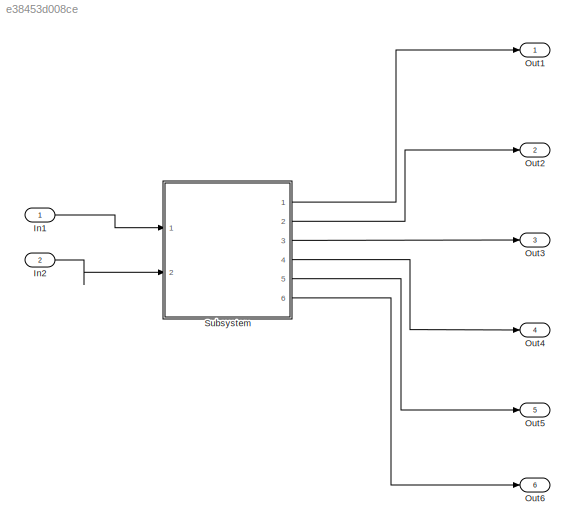
MODEL slx_e38453d008ce
KIND model
CONFIG AbsTol = auto
CONFIG EnableMultiTasking = off
CONFIG FixedStep = auto
CONFIG MaxStep = auto
CONFIG MinStep = auto
CONFIG RelTol = 1e-3
CONFIG SampleTimeConstraint = Unconstrained
CONFIG SolverName = FixedStepDiscrete
CONFIG StartTime = 0.0
CONFIG StopTime = 10.0
BLOCK [Inport] In1
BLOCK [Inport] In2
  Port = 2
BLOCK [Outport] Out1
  SignalName = AND_Out
BLOCK [Outport] Out2
  Port = 2
  SignalName = OR_Out
BLOCK [Outport] Out3
  Port = 3
  SignalName = XOR_Out
BLOCK [Outport] Out4
  Port = 4
  SignalName = XNOR_Out
BLOCK [Outport] Out5
  Port = 5
  SignalName = Num1_NOT
BLOCK [Outport] Out6
  Port = 6
  SignalName = Num2_NOT
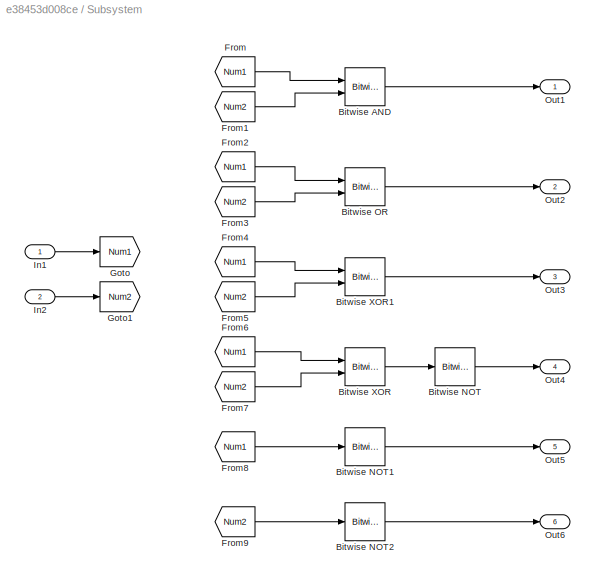
BLOCK [SubSystem] Subsystem
  Ports = [2, 6]
  RequestExecContextInheritance = off
  TreatAsAtomicUnit = on
BLOCK [Reference] Subsystem/Bitwise AND  REF=simulink/Logic and Bit
Operations/Bitwise
Operator
  Ports = [2, 1]
  SourceBlock = simulink/Logic and Bit\nOperations/Bitwise\nOperator
  SourceProductBaseCode = SL
  SourceType = Bitwise Operator
BLOCK [Reference] Subsystem/Bitwise NOT  REF=simulink/Logic and Bit
Operations/Bitwise
Operator
  Ports = [1, 1]
  SourceBlock = simulink/Logic and Bit\nOperations/Bitwise\nOperator
  SourceProductBaseCode = SL
  SourceType = Bitwise Operator
BLOCK [Reference] Subsystem/Bitwise NOT1  REF=simulink/Logic and Bit
Operations/Bitwise
Operator
  Ports = [1, 1]
  SourceBlock = simulink/Logic and Bit\nOperations/Bitwise\nOperator
  SourceProductBaseCode = SL
  SourceType = Bitwise Operator
BLOCK [Reference] Subsystem/Bitwise NOT2  REF=simulink/Logic and Bit
Operations/Bitwise
Operator
  Ports = [1, 1]
  SourceBlock = simulink/Logic and Bit\nOperations/Bitwise\nOperator
  SourceProductBaseCode = SL
  SourceType = Bitwise Operator
BLOCK [Reference] Subsystem/Bitwise OR  REF=simulink/Logic and Bit
Operations/Bitwise
Operator
  Ports = [2, 1]
  SourceBlock = simulink/Logic and Bit\nOperations/Bitwise\nOperator
  SourceProductBaseCode = SL
  SourceType = Bitwise Operator
BLOCK [Reference] Subsystem/Bitwise XOR  REF=simulink/Logic and Bit
Operations/Bitwise
Operator
  Ports = [2, 1]
  SourceBlock = simulink/Logic and Bit\nOperations/Bitwise\nOperator
  SourceProductBaseCode = SL
  SourceType = Bitwise Operator
BLOCK [Reference] Subsystem/Bitwise XOR1  REF=simulink/Logic and Bit
Operations/Bitwise
Operator
  Ports = [2, 1]
  SourceBlock = simulink/Logic and Bit\nOperations/Bitwise\nOperator
  SourceProductBaseCode = SL
  SourceType = Bitwise Operator
BLOCK [From] Subsystem/From
  GotoTag = Num1
BLOCK [From] Subsystem/From1
  GotoTag = Num2
BLOCK [From] Subsystem/From2
  GotoTag = Num1
BLOCK [From] Subsystem/From3
  GotoTag = Num2
BLOCK [From] Subsystem/From4
  GotoTag = Num1
BLOCK [From] Subsystem/From5
  GotoTag = Num2
BLOCK [From] Subsystem/From6
  GotoTag = Num1
BLOCK [From] Subsystem/From7
  GotoTag = Num2
BLOCK [From] Subsystem/From8
  GotoTag = Num1
BLOCK [From] Subsystem/From9
  GotoTag = Num2
BLOCK [Goto] Subsystem/Goto
  GotoTag = Num1
BLOCK [Goto] Subsystem/Goto1
  GotoTag = Num2
BLOCK [Inport] Subsystem/In1
  OutDataTypeStr = uint8
BLOCK [Inport] Subsystem/In2
  OutDataTypeStr = uint8
  Port = 2
BLOCK [Outport] Subsystem/Out1
BLOCK [Outport] Subsystem/Out2
  Port = 2
BLOCK [Outport] Subsystem/Out3
  Port = 3
BLOCK [Outport] Subsystem/Out4
  Port = 4
BLOCK [Outport] Subsystem/Out5
  Port = 5
BLOCK [Outport] Subsystem/Out6
  Port = 6
LINE In1:1 -> Subsystem:1
LINE In2:1 -> Subsystem:2
LINE Subsystem/Bitwise AND:1 -> Subsystem/Out1:1
LINE Subsystem/Bitwise NOT1:1 -> Subsystem/Out5:1
LINE Subsystem/Bitwise NOT2:1 -> Subsystem/Out6:1
LINE Subsystem/Bitwise NOT:1 -> Subsystem/Out4:1
LINE Subsystem/Bitwise OR:1 -> Subsystem/Out2:1
LINE Subsystem/Bitwise XOR1:1 -> Subsystem/Out3:1
LINE Subsystem/Bitwise XOR:1 -> Subsystem/Bitwise NOT:1
LINE Subsystem/From1:1 -> Subsystem/Bitwise AND:2
LINE Subsystem/From2:1 -> Subsystem/Bitwise OR:1
LINE Subsystem/From3:1 -> Subsystem/Bitwise OR:2
LINE Subsystem/From4:1 -> Subsystem/Bitwise XOR1:1
LINE Subsystem/From5:1 -> Subsystem/Bitwise XOR1:2
LINE Subsystem/From6:1 -> Subsystem/Bitwise XOR:1
LINE Subsystem/From7:1 -> Subsystem/Bitwise XOR:2
LINE Subsystem/From8:1 -> Subsystem/Bitwise NOT1:1
LINE Subsystem/From9:1 -> Subsystem/Bitwise NOT2:1
LINE Subsystem/From:1 -> Subsystem/Bitwise AND:1
LINE Subsystem/In1:1 -> Subsystem/Goto:1
LINE Subsystem/In2:1 -> Subsystem/Goto1:1
LINE Subsystem:1 -> Out1:1
LINE Subsystem:2 -> Out2:1
LINE Subsystem:3 -> Out3:1
LINE Subsystem:4 -> Out4:1
LINE Subsystem:5 -> Out5:1
LINE Subsystem:6 -> Out6:1
